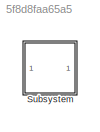
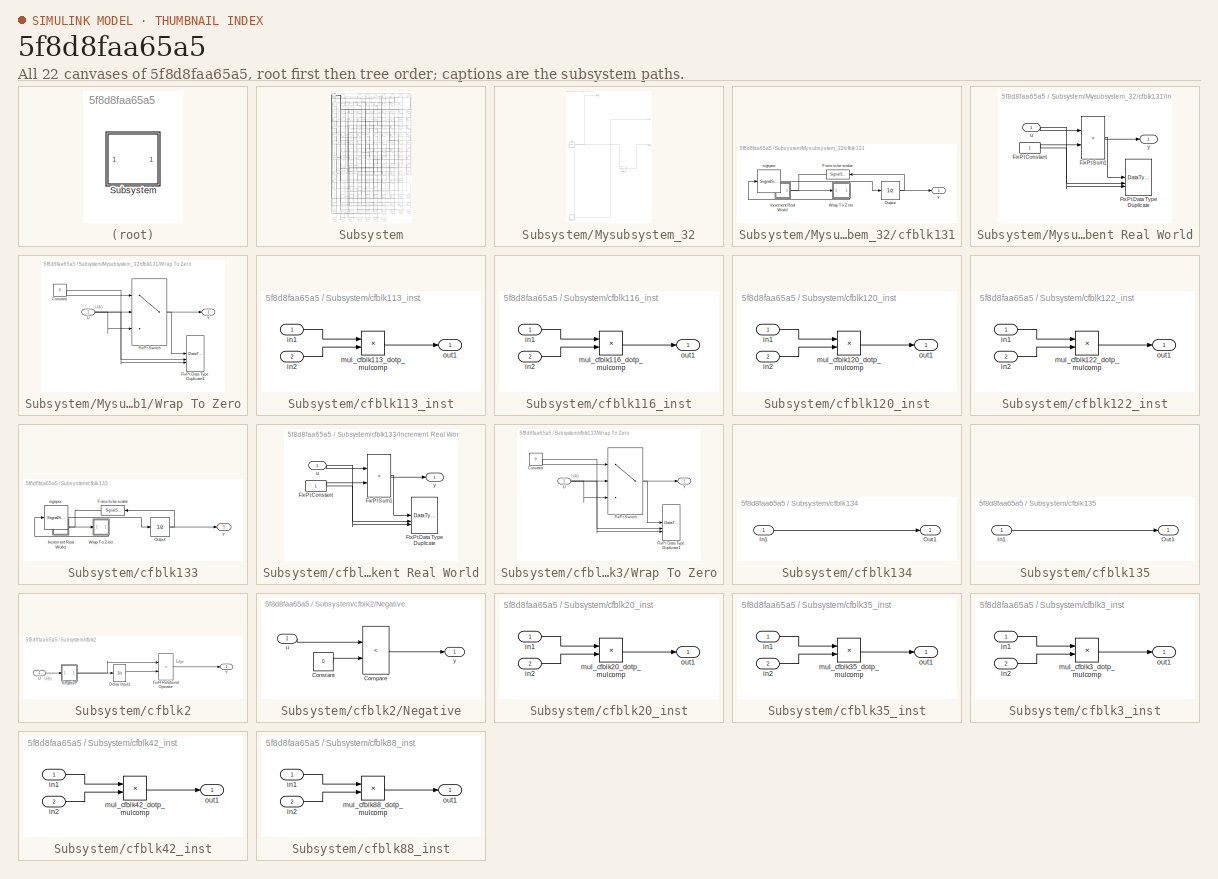
[diagram: thumbnail index - all 22 canvases of the model, root first then tree order]
MODEL slx_5f8d8faa65a5
KIND model
CONFIG AbsTol = auto
CONFIG EnableMultiTasking = off
CONFIG FixedStep = auto
CONFIG MaxStep = auto
CONFIG MinStep = auto
CONFIG RelTol = 1e-3
CONFIG SampleTimeConstraint = Unconstrained
CONFIG SolverName = VariableStepAuto
CONFIG StartTime = 0.0
CONFIG StopTime = 10.0
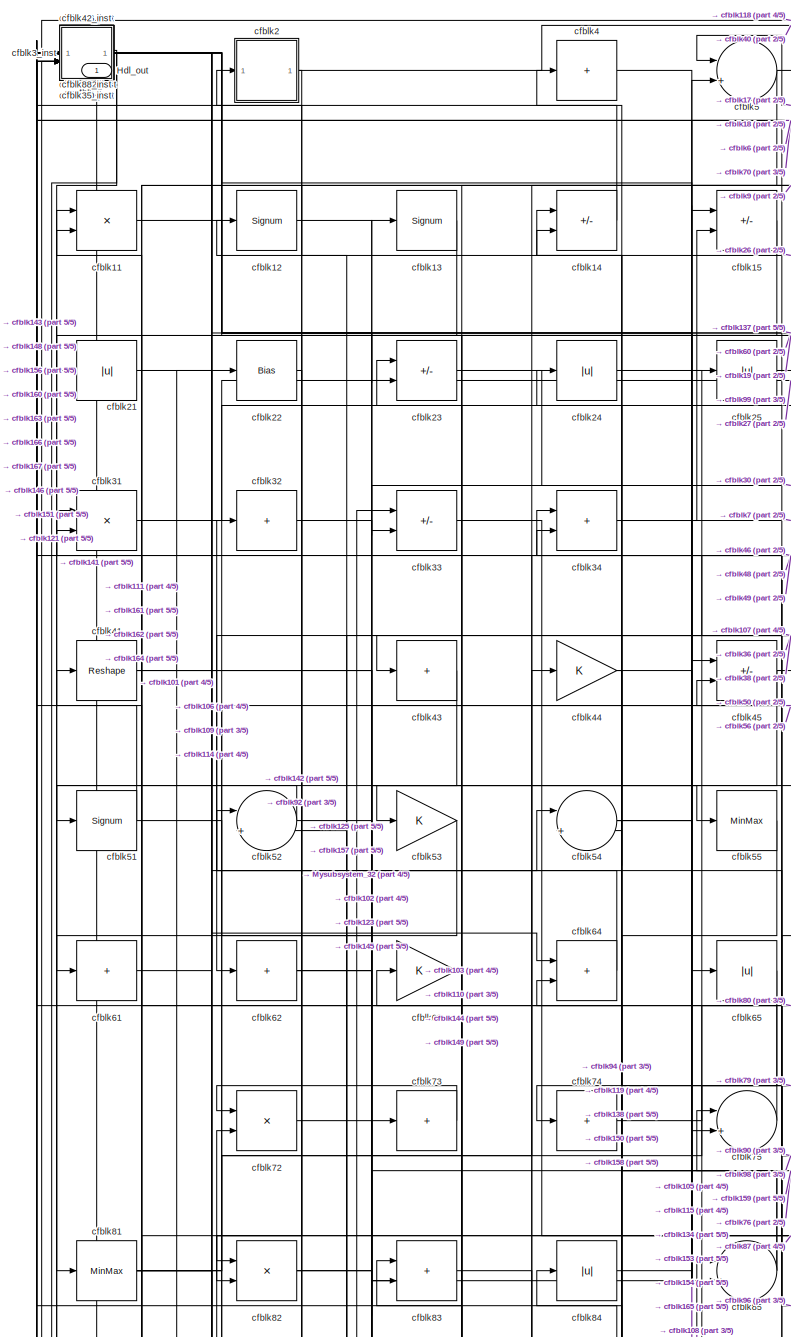
[diagram: Subsystem - part 1/5, top left region]
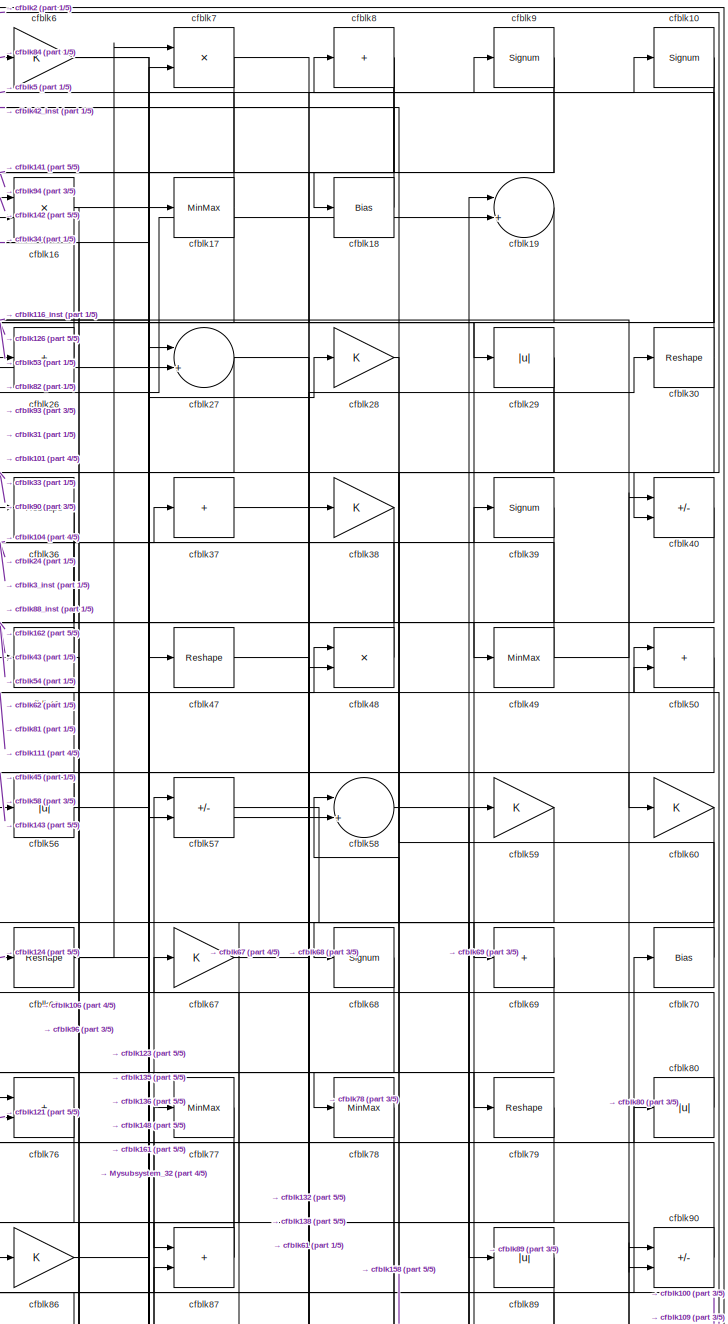
[diagram: Subsystem - part 2/5, top right region]
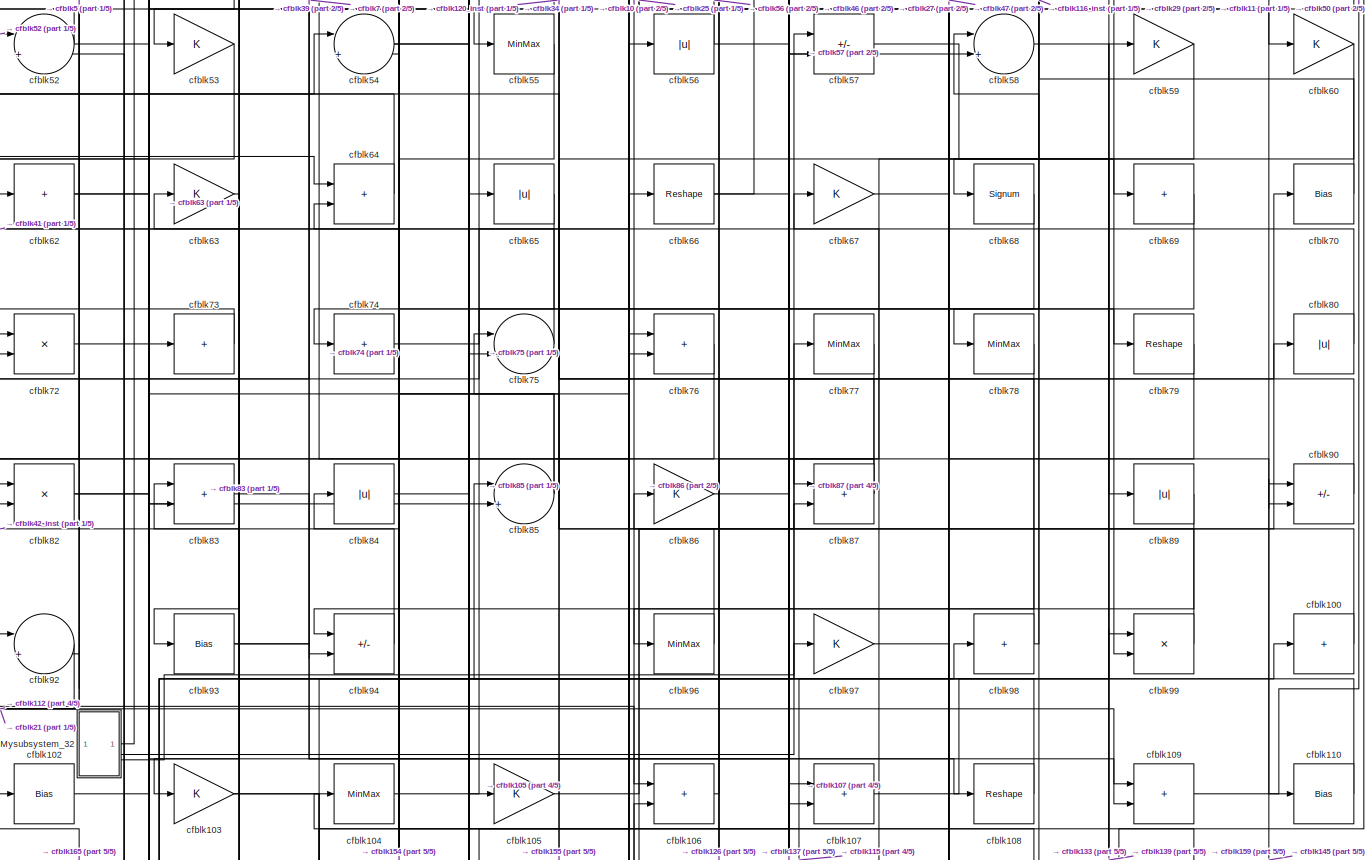
[diagram: Subsystem - part 3/5, full width, middle band]
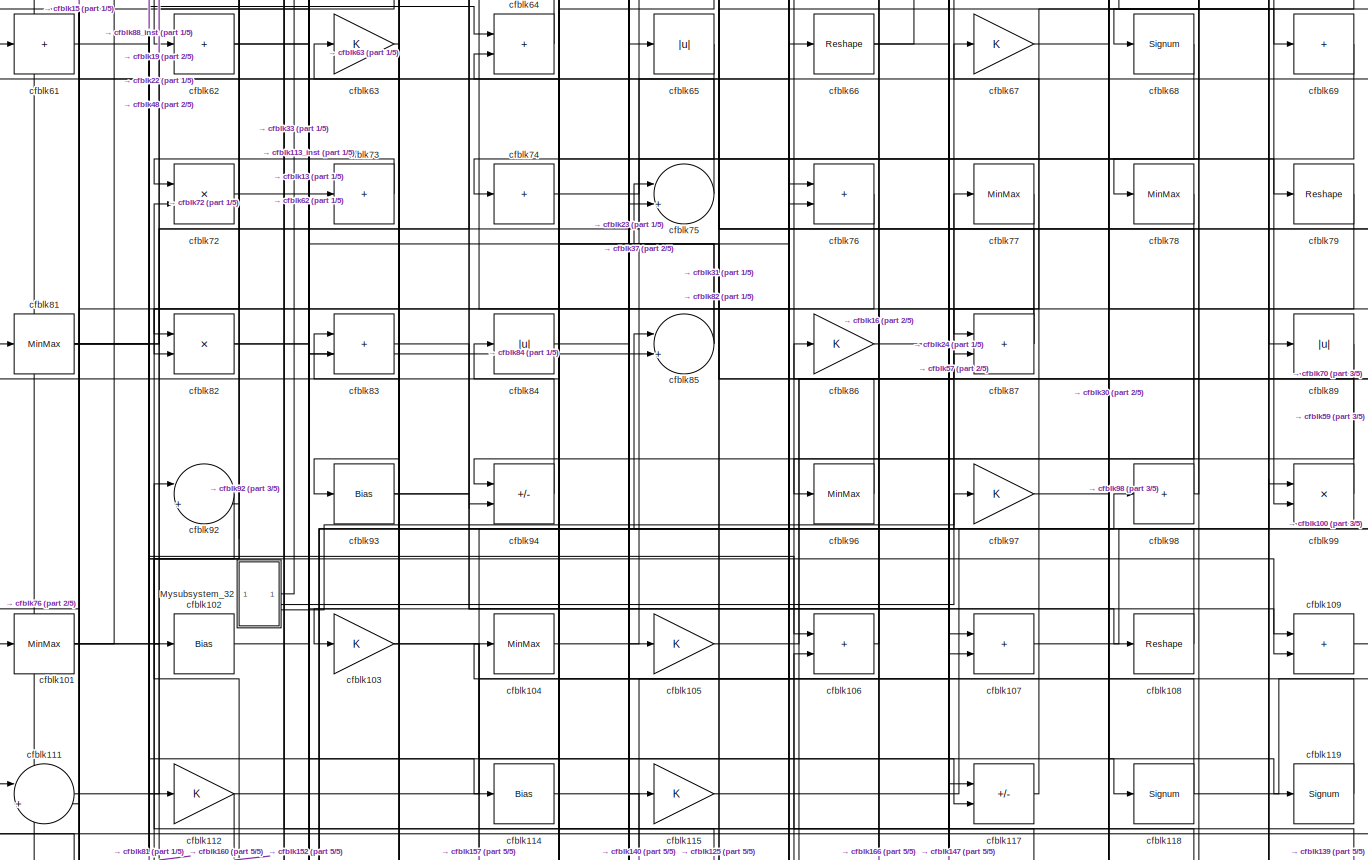
[diagram: Subsystem - part 4/5, full width, middle band]
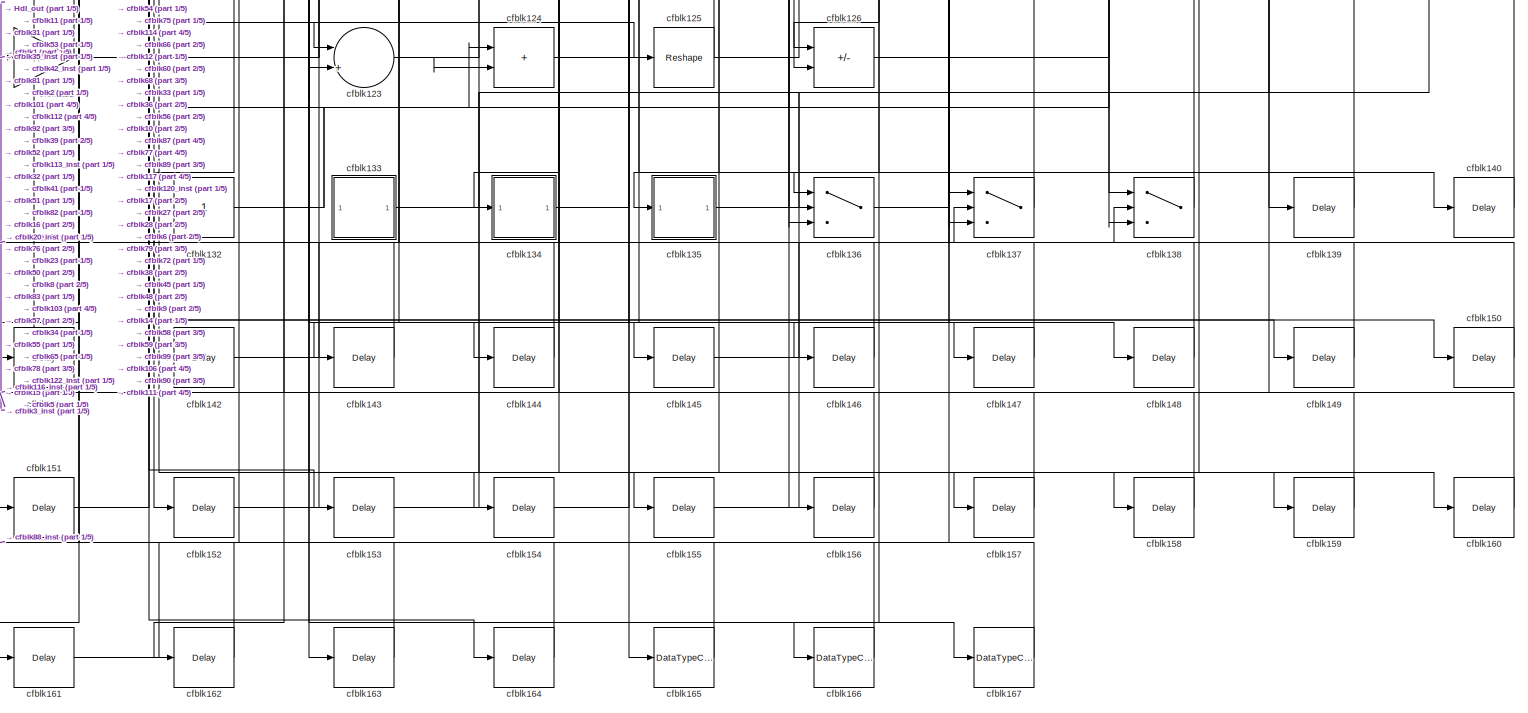
[diagram: Subsystem - part 5/5, full width, bottom band]
BLOCK [SubSystem] Subsystem
BLOCK [Outport] Subsystem/Hdl_out
  OutDataTypeStr = uint8
  SampleTime = 1
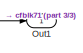
[diagram: Subsystem/Mysubsystem_32 - part 1/3, top center region]
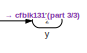
[diagram: Subsystem/Mysubsystem_32 - part 2/3, top right region]
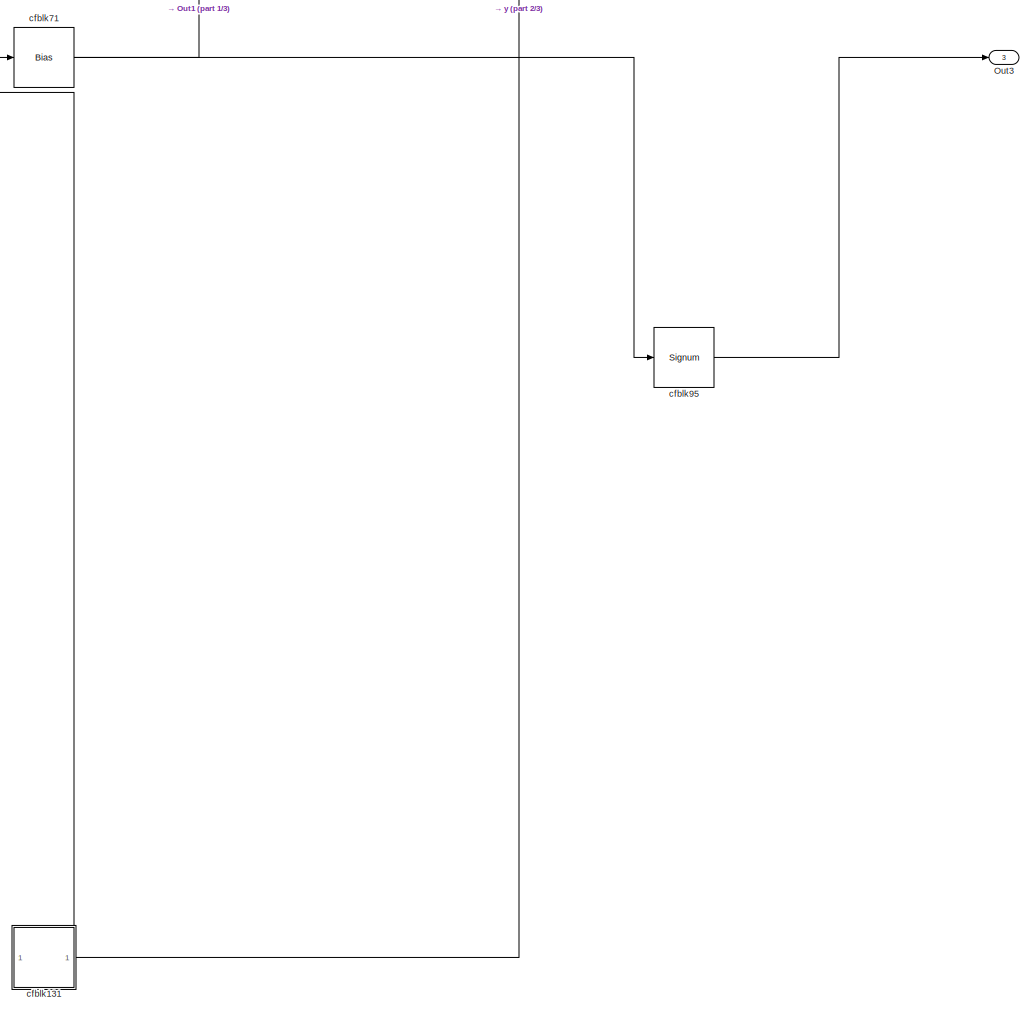
[diagram: Subsystem/Mysubsystem_32 - part 3/3, full width, bottom band]
BLOCK [SubSystem] Subsystem/Mysubsystem_32
BLOCK [Outport] Subsystem/Mysubsystem_32/Out1
  SampleTime = 1
BLOCK [Outport] Subsystem/Mysubsystem_32/Out3
  Port = 3
  SampleTime = 1
BLOCK [SubSystem] Subsystem/Mysubsystem_32/cfblk131
BLOCK [SignalSpecification] Subsystem/Mysubsystem_32/cfblk131/Force to be scalar
  Dimensions = 1
  DisableCoverage = on
BLOCK [SubSystem] Subsystem/Mysubsystem_32/cfblk131/Increment Real World
BLOCK [Constant] Subsystem/Mysubsystem_32/cfblk131/Increment Real World/FixPt Constant
  DisableCoverage = on
  OutDataTypeStr = Inherit: Inherit via back propagation
  SampleTime = -1
BLOCK [DataTypeDuplicate] Subsystem/Mysubsystem_32/cfblk131/Increment Real World/FixPt Data Type Duplicate
  DisableCoverage = on
  NumInputPorts = 3
BLOCK [Sum] Subsystem/Mysubsystem_32/cfblk131/Increment Real World/FixPt Sum1
  IconShape = rectangular
  InputSameDT = on
  LockScale = on
  OutDataTypeStr = Inherit: Inherit via back propagation
BLOCK [Inport] Subsystem/Mysubsystem_32/cfblk131/Increment Real World/u
  OutDataTypeStr = uint8
  SampleTime = 1
BLOCK [Outport] Subsystem/Mysubsystem_32/cfblk131/Increment Real World/y
  SampleTime = 1
BLOCK [UnitDelay] Subsystem/Mysubsystem_32/cfblk131/Output
  HasFrameUpgradeWarning = on
  InitialCondition = 0.0
  SampleTime = tsamp
BLOCK [SubSystem] Subsystem/Mysubsystem_32/cfblk131/Wrap To Zero
BLOCK [Constant] Subsystem/Mysubsystem_32/cfblk131/Wrap To Zero/Constant
  DisableCoverage = on
  OutDataTypeStr = Inherit: Inherit via back propagation
  SampleTime = -1
  Value = 0
BLOCK [DataTypeDuplicate] Subsystem/Mysubsystem_32/cfblk131/Wrap To Zero/FixPt Data Type Duplicate1
  DisableCoverage = on
  NumInputPorts = 3
BLOCK [Switch] Subsystem/Mysubsystem_32/cfblk131/Wrap To Zero/FixPt Switch
  Criteria = u2 > Threshold
  InputSameDT = off
  OutDataTypeStr = Inherit: Inherit via back propagation
  SaturateOnIntegerOverflow = off
  Threshold = Threshold
  ZeroCross = off
BLOCK [Inport] Subsystem/Mysubsystem_32/cfblk131/Wrap To Zero/U
  OutDataTypeStr = uint8
  SampleTime = 1
BLOCK [Outport] Subsystem/Mysubsystem_32/cfblk131/Wrap To Zero/Y
  SampleTime = 1
BLOCK [SignalSpecification] Subsystem/Mysubsystem_32/cfblk131/sigspec
  Dimensions = 1
  OutDataTypeStr = uint8
BLOCK [Outport] Subsystem/Mysubsystem_32/cfblk131/y
  SampleTime = 1
BLOCK [Bias] Subsystem/Mysubsystem_32/cfblk71
  Bias = 0.0
  SaturateOnIntegerOverflow = off
BLOCK [Signum] Subsystem/Mysubsystem_32/cfblk95
BLOCK [Outport] Subsystem/Mysubsystem_32/y
  Port = 2
  SampleTime = 1
BLOCK [Constant] Subsystem/cfblk1
  OutDataTypeStr = uint8
  SampleTime = 1
  Value = 0
BLOCK [Signum] Subsystem/cfblk10
BLOCK [Sum] Subsystem/cfblk100
  IconShape = rectangular
  Inputs = +
  OutDataTypeStr = uint8
BLOCK [MinMax] Subsystem/cfblk101
  OutDataTypeStr = uint8
BLOCK [Bias] Subsystem/cfblk102
  Bias = 0.0
  SaturateOnIntegerOverflow = off
BLOCK [Gain] Subsystem/cfblk103
  OutDataTypeStr = uint8
BLOCK [MinMax] Subsystem/cfblk104
  OutDataTypeStr = uint8
BLOCK [Gain] Subsystem/cfblk105
  OutDataTypeStr = uint8
BLOCK [Sum] Subsystem/cfblk106
  IconShape = rectangular
  OutDataTypeStr = uint8
BLOCK [Sum] Subsystem/cfblk107
  IconShape = rectangular
  OutDataTypeStr = uint8
BLOCK [Reshape] Subsystem/cfblk108
BLOCK [Sum] Subsystem/cfblk109
  IconShape = rectangular
  OutDataTypeStr = uint8
BLOCK [Product] Subsystem/cfblk11
  Inputs = */
  OutDataTypeStr = uint8
  RndMeth = Zero
  SaturateOnIntegerOverflow = on
BLOCK [Bias] Subsystem/cfblk110
  Bias = 0.0
  SaturateOnIntegerOverflow = off
BLOCK [Sum] Subsystem/cfblk111
  Inputs = |++
  OutDataTypeStr = uint8
BLOCK [Gain] Subsystem/cfblk112
  OutDataTypeStr = uint8
BLOCK [SubSystem] Subsystem/cfblk113_inst
BLOCK [Inport] Subsystem/cfblk113_inst/in1
  OutDataTypeStr = uint8
  SampleTime = 1
BLOCK [Inport] Subsystem/cfblk113_inst/in2
  OutDataTypeStr = uint8
  Port = 2
  SampleTime = 1
BLOCK [Product] Subsystem/cfblk113_inst/mul_cfblk113_dotp_mulcomp
  Inputs = **
  OutDataTypeStr = uint8
  SampleTime = 1
BLOCK [Outport] Subsystem/cfblk113_inst/out1
  OutDataTypeStr = uint8
  SampleTime = 1
BLOCK [Bias] Subsystem/cfblk114
  Bias = 0.0
  SaturateOnIntegerOverflow = off
BLOCK [Gain] Subsystem/cfblk115
  OutDataTypeStr = uint8
BLOCK [SubSystem] Subsystem/cfblk116_inst
BLOCK [Inport] Subsystem/cfblk116_inst/in1
  OutDataTypeStr = uint8
  SampleTime = 1
BLOCK [Inport] Subsystem/cfblk116_inst/in2
  OutDataTypeStr = uint8
  Port = 2
  SampleTime = 1
BLOCK [Product] Subsystem/cfblk116_inst/mul_cfblk116_dotp_mulcomp
  Inputs = **
  OutDataTypeStr = uint8
  SampleTime = 1
BLOCK [Outport] Subsystem/cfblk116_inst/out1
  OutDataTypeStr = uint8
  SampleTime = 1
BLOCK [Sum] Subsystem/cfblk117
  IconShape = rectangular
  Inputs = +-
  OutDataTypeStr = uint8
BLOCK [Signum] Subsystem/cfblk118
BLOCK [Signum] Subsystem/cfblk119
BLOCK [Signum] Subsystem/cfblk12
BLOCK [SubSystem] Subsystem/cfblk120_inst
BLOCK [Inport] Subsystem/cfblk120_inst/in1
  OutDataTypeStr = uint8
  SampleTime = 1
BLOCK [Inport] Subsystem/cfblk120_inst/in2
  OutDataTypeStr = uint8
  Port = 2
  SampleTime = 1
BLOCK [Product] Subsystem/cfblk120_inst/mul_cfblk120_dotp_mulcomp
  Inputs = **
  OutDataTypeStr = uint8
  SampleTime = 1
BLOCK [Outport] Subsystem/cfblk120_inst/out1
  OutDataTypeStr = uint8
  SampleTime = 1
BLOCK [Gain] Subsystem/cfblk121
  OutDataTypeStr = uint8
BLOCK [SubSystem] Subsystem/cfblk122_inst
BLOCK [Inport] Subsystem/cfblk122_inst/in1
  OutDataTypeStr = uint8
  SampleTime = 1
BLOCK [Inport] Subsystem/cfblk122_inst/in2
  OutDataTypeStr = uint8
  Port = 2
  SampleTime = 1
BLOCK [Product] Subsystem/cfblk122_inst/mul_cfblk122_dotp_mulcomp
  Inputs = **
  OutDataTypeStr = uint8
  SampleTime = 1
BLOCK [Outport] Subsystem/cfblk122_inst/out1
  OutDataTypeStr = uint8
  SampleTime = 1
BLOCK [Sum] Subsystem/cfblk123
  Inputs = |++
  OutDataTypeStr = uint8
BLOCK [Sum] Subsystem/cfblk124
  IconShape = rectangular
  OutDataTypeStr = uint8
BLOCK [Reshape] Subsystem/cfblk125
BLOCK [Sum] Subsystem/cfblk126
  IconShape = rectangular
  Inputs = +-
  OutDataTypeStr = uint8
BLOCK [Signum] Subsystem/cfblk13
BLOCK [Constant] Subsystem/cfblk132
  OutDataTypeStr = uint8
  SampleTime = -1
BLOCK [SubSystem] Subsystem/cfblk133
BLOCK [SignalSpecification] Subsystem/cfblk133/Force to be scalar
  Dimensions = 1
  DisableCoverage = on
BLOCK [SubSystem] Subsystem/cfblk133/Increment Real World
BLOCK [Constant] Subsystem/cfblk133/Increment Real World/FixPt Constant
  DisableCoverage = on
  OutDataTypeStr = Inherit: Inherit via back propagation
  SampleTime = -1
BLOCK [DataTypeDuplicate] Subsystem/cfblk133/Increment Real World/FixPt Data Type Duplicate
  DisableCoverage = on
  NumInputPorts = 3
BLOCK [Sum] Subsystem/cfblk133/Increment Real World/FixPt Sum1
  IconShape = rectangular
  InputSameDT = on
  LockScale = on
  OutDataTypeStr = Inherit: Inherit via back propagation
BLOCK [Inport] Subsystem/cfblk133/Increment Real World/u
  OutDataTypeStr = uint16
  SampleTime = 1
BLOCK [Outport] Subsystem/cfblk133/Increment Real World/y
  SampleTime = 1
BLOCK [UnitDelay] Subsystem/cfblk133/Output
  HasFrameUpgradeWarning = on
  InitialCondition = 0.0
  SampleTime = tsamp
BLOCK [SubSystem] Subsystem/cfblk133/Wrap To Zero
BLOCK [Constant] Subsystem/cfblk133/Wrap To Zero/Constant
  DisableCoverage = on
  OutDataTypeStr = Inherit: Inherit via back propagation
  SampleTime = -1
  Value = 0
BLOCK [DataTypeDuplicate] Subsystem/cfblk133/Wrap To Zero/FixPt Data Type Duplicate1
  DisableCoverage = on
  NumInputPorts = 3
BLOCK [Switch] Subsystem/cfblk133/Wrap To Zero/FixPt Switch
  Criteria = u2 > Threshold
  InputSameDT = off
  OutDataTypeStr = Inherit: Inherit via back propagation
  SaturateOnIntegerOverflow = off
  Threshold = Threshold
  ZeroCross = off
BLOCK [Inport] Subsystem/cfblk133/Wrap To Zero/U
  OutDataTypeStr = uint16
  SampleTime = 1
BLOCK [Outport] Subsystem/cfblk133/Wrap To Zero/Y
  SampleTime = 1
BLOCK [SignalSpecification] Subsystem/cfblk133/sigspec
  Dimensions = 1
  OutDataTypeStr = uint16
BLOCK [Outport] Subsystem/cfblk133/y
  SampleTime = 1
BLOCK [SubSystem] Subsystem/cfblk134
BLOCK [Inport] Subsystem/cfblk134/In1
  OutDataTypeStr = uint8
  PortDimensions = 1
  SampleTime = 1
BLOCK [Outport] Subsystem/cfblk134/Out1
  SampleTime = 1
BLOCK [SubSystem] Subsystem/cfblk135
BLOCK [Inport] Subsystem/cfblk135/In1
  OutDataTypeStr = uint8
  PortDimensions = 1
  SampleTime = 1
BLOCK [Outport] Subsystem/cfblk135/Out1
  SampleTime = 1
BLOCK [Switch] Subsystem/cfblk136
  InputSameDT = off
  OutDataTypeStr = uint8
  SaturateOnIntegerOverflow = off
BLOCK [Switch] Subsystem/cfblk137
  InputSameDT = off
  OutDataTypeStr = uint8
  SaturateOnIntegerOverflow = off
BLOCK [Switch] Subsystem/cfblk138
  InputSameDT = off
  OutDataTypeStr = uint8
  SaturateOnIntegerOverflow = off
BLOCK [Delay] Subsystem/cfblk139
  InputPortMap = u0
  SampleTime = 1
BLOCK [Sum] Subsystem/cfblk14
  IconShape = rectangular
  Inputs = +-
  OutDataTypeStr = uint8
BLOCK [Delay] Subsystem/cfblk140
  InputPortMap = u0
  SampleTime = 1
BLOCK [Delay] Subsystem/cfblk141
  InputPortMap = u0
  SampleTime = 1
BLOCK [Delay] Subsystem/cfblk142
  InputPortMap = u0
  SampleTime = 1
BLOCK [Delay] Subsystem/cfblk143
  InputPortMap = u0
  SampleTime = 1
BLOCK [Delay] Subsystem/cfblk144
  InputPortMap = u0
  SampleTime = 1
BLOCK [Delay] Subsystem/cfblk145
  InputPortMap = u0
  SampleTime = 1
BLOCK [Delay] Subsystem/cfblk146
  InputPortMap = u0
  SampleTime = 1
BLOCK [Delay] Subsystem/cfblk147
  InputPortMap = u0
  SampleTime = 1
BLOCK [Delay] Subsystem/cfblk148
  InputPortMap = u0
  SampleTime = 1
BLOCK [Delay] Subsystem/cfblk149
  InputPortMap = u0
  SampleTime = 1
BLOCK [Sum] Subsystem/cfblk15
  IconShape = rectangular
  Inputs = +-
  OutDataTypeStr = uint8
BLOCK [Delay] Subsystem/cfblk150
  InputPortMap = u0
  SampleTime = 1
BLOCK [Delay] Subsystem/cfblk151
  InputPortMap = u0
  SampleTime = 1
BLOCK [Delay] Subsystem/cfblk152
  InputPortMap = u0
  SampleTime = 1
BLOCK [Delay] Subsystem/cfblk153
  InputPortMap = u0
  SampleTime = 1
BLOCK [Delay] Subsystem/cfblk154
  InputPortMap = u0
  SampleTime = 1
BLOCK [Delay] Subsystem/cfblk155
  InputPortMap = u0
  SampleTime = 1
BLOCK [Delay] Subsystem/cfblk156
  InputPortMap = u0
  SampleTime = 1
BLOCK [Delay] Subsystem/cfblk157
  InputPortMap = u0
  SampleTime = 1
BLOCK [Delay] Subsystem/cfblk158
  InputPortMap = u0
  SampleTime = 1
BLOCK [Delay] Subsystem/cfblk159
  InputPortMap = u0
  SampleTime = 1
BLOCK [Product] Subsystem/cfblk16
  Inputs = */
  OutDataTypeStr = uint8
  RndMeth = Zero
  SaturateOnIntegerOverflow = on
BLOCK [Delay] Subsystem/cfblk160
  InputPortMap = u0
  SampleTime = 1
BLOCK [Delay] Subsystem/cfblk161
  InputPortMap = u0
  SampleTime = 1
BLOCK [Delay] Subsystem/cfblk162
  InputPortMap = u0
  SampleTime = 1
BLOCK [Delay] Subsystem/cfblk163
  InputPortMap = u0
  SampleTime = 1
BLOCK [Delay] Subsystem/cfblk164
  InputPortMap = u0
  SampleTime = 1
BLOCK [DataTypeConversion] Subsystem/cfblk165
  OutDataTypeStr = uint8
  RndMeth = Floor
  SaturateOnIntegerOverflow = off
BLOCK [DataTypeConversion] Subsystem/cfblk166
  OutDataTypeStr = uint8
  RndMeth = Floor
  SaturateOnIntegerOverflow = off
BLOCK [DataTypeConversion] Subsystem/cfblk167
  OutDataTypeStr = uint8
  RndMeth = Floor
  SaturateOnIntegerOverflow = off
BLOCK [MinMax] Subsystem/cfblk17
  OutDataTypeStr = uint8
BLOCK [Bias] Subsystem/cfblk18
  Bias = 0.0
  SaturateOnIntegerOverflow = off
BLOCK [Sum] Subsystem/cfblk19
  Inputs = |++
  OutDataTypeStr = uint8
BLOCK [SubSystem] Subsystem/cfblk2
BLOCK [UnitDelay] Subsystem/cfblk2/Delay Input1
  Description = Store in Global RAM
  DisableCoverage = on
  HasFrameUpgradeWarning = on
  InitialCondition = vinit
  SampleTime = -1
BLOCK [RelationalOperator] Subsystem/cfblk2/FixPt Relational Operator
  InputSameDT = off
  Operator = >
  OutDataTypeStr = fixdt(0, 8)
  ZeroCross = off
BLOCK [SubSystem] Subsystem/cfblk2/Negative
BLOCK [RelationalOperator] Subsystem/cfblk2/Negative/Compare
  Operator = <
  OutDataTypeStr = boolean
  ZeroCross = off
BLOCK [Constant] Subsystem/cfblk2/Negative/Constant
  DisableCoverage = on
  OutDataTypeStr = Inherit: Inherit via back propagation
  PreserveConstantTs = on
  SampleTime = -1
  Value = 0
BLOCK [Inport] Subsystem/cfblk2/Negative/u
  OutDataTypeStr = uint8
  SampleTime = 1
BLOCK [Outport] Subsystem/cfblk2/Negative/y
  SampleTime = 1
BLOCK [Inport] Subsystem/cfblk2/U
  OutDataTypeStr = uint8
  SampleTime = 1
BLOCK [Outport] Subsystem/cfblk2/Y
  SampleTime = 1
BLOCK [SubSystem] Subsystem/cfblk20_inst
BLOCK [Inport] Subsystem/cfblk20_inst/in1
  OutDataTypeStr = uint8
  SampleTime = 1
BLOCK [Inport] Subsystem/cfblk20_inst/in2
  OutDataTypeStr = uint8
  Port = 2
  SampleTime = 1
BLOCK [Product] Subsystem/cfblk20_inst/mul_cfblk20_dotp_mulcomp
  Inputs = **
  OutDataTypeStr = uint8
  SampleTime = 1
BLOCK [Outport] Subsystem/cfblk20_inst/out1
  OutDataTypeStr = uint8
  SampleTime = 1
BLOCK [Abs] Subsystem/cfblk21
  OutDataTypeStr = uint8
  SaturateOnIntegerOverflow = off
BLOCK [Bias] Subsystem/cfblk22
  Bias = 0.0
  SaturateOnIntegerOverflow = off
BLOCK [Sum] Subsystem/cfblk23
  IconShape = rectangular
  Inputs = +-
  OutDataTypeStr = uint8
BLOCK [Abs] Subsystem/cfblk24
  OutDataTypeStr = uint8
  SaturateOnIntegerOverflow = off
BLOCK [Abs] Subsystem/cfblk25
  OutDataTypeStr = uint8
  SaturateOnIntegerOverflow = off
BLOCK [Sum] Subsystem/cfblk26
  IconShape = rectangular
  Inputs = +
  OutDataTypeStr = uint8
BLOCK [Sum] Subsystem/cfblk27
  Inputs = |++
  OutDataTypeStr = uint8
BLOCK [Gain] Subsystem/cfblk28
  OutDataTypeStr = uint8
BLOCK [Abs] Subsystem/cfblk29
  OutDataTypeStr = uint8
  SaturateOnIntegerOverflow = off
BLOCK [Reshape] Subsystem/cfblk30
BLOCK [Product] Subsystem/cfblk31
  Inputs = */
  OutDataTypeStr = uint8
  RndMeth = Zero
  SaturateOnIntegerOverflow = on
BLOCK [Sum] Subsystem/cfblk32
  IconShape = rectangular
  Inputs = +
  OutDataTypeStr = uint8
BLOCK [Sum] Subsystem/cfblk33
  IconShape = rectangular
  Inputs = +-
  OutDataTypeStr = uint8
BLOCK [Sum] Subsystem/cfblk34
  IconShape = rectangular
  OutDataTypeStr = uint8
BLOCK [SubSystem] Subsystem/cfblk35_inst
BLOCK [Inport] Subsystem/cfblk35_inst/in1
  OutDataTypeStr = uint8
  SampleTime = 1
BLOCK [Inport] Subsystem/cfblk35_inst/in2
  OutDataTypeStr = uint8
  Port = 2
  SampleTime = 1
BLOCK [Product] Subsystem/cfblk35_inst/mul_cfblk35_dotp_mulcomp
  Inputs = **
  OutDataTypeStr = uint8
  SampleTime = 1
BLOCK [Outport] Subsystem/cfblk35_inst/out1
  OutDataTypeStr = uint8
  SampleTime = 1
BLOCK [Reshape] Subsystem/cfblk36
BLOCK [Sum] Subsystem/cfblk37
  IconShape = rectangular
  Inputs = +
  OutDataTypeStr = uint8
BLOCK [Gain] Subsystem/cfblk38
  OutDataTypeStr = uint8
BLOCK [Signum] Subsystem/cfblk39
BLOCK [SubSystem] Subsystem/cfblk3_inst
BLOCK [Inport] Subsystem/cfblk3_inst/in1
  OutDataTypeStr = uint8
  SampleTime = 1
BLOCK [Inport] Subsystem/cfblk3_inst/in2
  OutDataTypeStr = uint8
  Port = 2
  SampleTime = 1
BLOCK [Product] Subsystem/cfblk3_inst/mul_cfblk3_dotp_mulcomp
  Inputs = **
  OutDataTypeStr = uint8
  SampleTime = 1
BLOCK [Outport] Subsystem/cfblk3_inst/out1
  OutDataTypeStr = uint8
  SampleTime = 1
BLOCK [Sum] Subsystem/cfblk4
  IconShape = rectangular
  Inputs = +
  OutDataTypeStr = uint8
BLOCK [Sum] Subsystem/cfblk40
  IconShape = rectangular
  Inputs = +-
  OutDataTypeStr = uint8
BLOCK [Reshape] Subsystem/cfblk41
BLOCK [SubSystem] Subsystem/cfblk42_inst
BLOCK [Inport] Subsystem/cfblk42_inst/in1
  OutDataTypeStr = uint8
  SampleTime = 1
BLOCK [Inport] Subsystem/cfblk42_inst/in2
  OutDataTypeStr = uint8
  Port = 2
  SampleTime = 1
BLOCK [Product] Subsystem/cfblk42_inst/mul_cfblk42_dotp_mulcomp
  Inputs = **
  OutDataTypeStr = uint8
  SampleTime = 1
BLOCK [Outport] Subsystem/cfblk42_inst/out1
  OutDataTypeStr = uint8
  SampleTime = 1
BLOCK [Sum] Subsystem/cfblk43
  IconShape = rectangular
  Inputs = +
  OutDataTypeStr = uint8
BLOCK [Gain] Subsystem/cfblk44
  OutDataTypeStr = uint8
BLOCK [Sum] Subsystem/cfblk45
  IconShape = rectangular
  Inputs = +-
  OutDataTypeStr = uint8
BLOCK [Sum] Subsystem/cfblk46
  IconShape = rectangular
  Inputs = +
  OutDataTypeStr = uint8
BLOCK [Reshape] Subsystem/cfblk47
BLOCK [Product] Subsystem/cfblk48
  Inputs = */
  OutDataTypeStr = uint8
  RndMeth = Zero
  SaturateOnIntegerOverflow = on
BLOCK [MinMax] Subsystem/cfblk49
  OutDataTypeStr = uint8
BLOCK [Sum] Subsystem/cfblk5
  Inputs = |++
  OutDataTypeStr = uint8
BLOCK [Sum] Subsystem/cfblk50
  IconShape = rectangular
  OutDataTypeStr = uint8
BLOCK [Signum] Subsystem/cfblk51
BLOCK [Sum] Subsystem/cfblk52
  Inputs = |++
  OutDataTypeStr = uint8
BLOCK [Gain] Subsystem/cfblk53
  OutDataTypeStr = uint8
BLOCK [Sum] Subsystem/cfblk54
  Inputs = |++
  OutDataTypeStr = uint8
BLOCK [MinMax] Subsystem/cfblk55
  OutDataTypeStr = uint8
BLOCK [Abs] Subsystem/cfblk56
  OutDataTypeStr = uint8
  SaturateOnIntegerOverflow = off
BLOCK [Sum] Subsystem/cfblk57
  IconShape = rectangular
  Inputs = +-
  OutDataTypeStr = uint8
BLOCK [Sum] Subsystem/cfblk58
  Inputs = |++
  OutDataTypeStr = uint8
BLOCK [Gain] Subsystem/cfblk59
  OutDataTypeStr = uint8
BLOCK [Gain] Subsystem/cfblk6
  OutDataTypeStr = uint8
BLOCK [Gain] Subsystem/cfblk60
  OutDataTypeStr = uint8
BLOCK [Sum] Subsystem/cfblk61
  IconShape = rectangular
  Inputs = +
  OutDataTypeStr = uint8
BLOCK [Sum] Subsystem/cfblk62
  IconShape = rectangular
  Inputs = +
  OutDataTypeStr = uint8
BLOCK [Gain] Subsystem/cfblk63
  OutDataTypeStr = uint8
BLOCK [Sum] Subsystem/cfblk64
  IconShape = rectangular
  OutDataTypeStr = uint8
BLOCK [Abs] Subsystem/cfblk65
  OutDataTypeStr = uint8
  SaturateOnIntegerOverflow = off
BLOCK [Reshape] Subsystem/cfblk66
BLOCK [Gain] Subsystem/cfblk67
  OutDataTypeStr = uint8
BLOCK [Signum] Subsystem/cfblk68
BLOCK [Sum] Subsystem/cfblk69
  IconShape = rectangular
  Inputs = +
  OutDataTypeStr = uint8
BLOCK [Product] Subsystem/cfblk7
  Inputs = */
  OutDataTypeStr = uint8
  RndMeth = Zero
  SaturateOnIntegerOverflow = on
BLOCK [Bias] Subsystem/cfblk70
  Bias = 0.0
  SaturateOnIntegerOverflow = off
BLOCK [Product] Subsystem/cfblk72
  Inputs = */
  OutDataTypeStr = uint8
  RndMeth = Zero
  SaturateOnIntegerOverflow = on
BLOCK [Sum] Subsystem/cfblk73
  IconShape = rectangular
  Inputs = +
  OutDataTypeStr = uint8
BLOCK [Sum] Subsystem/cfblk74
  IconShape = rectangular
  Inputs = +
  OutDataTypeStr = uint8
BLOCK [Sum] Subsystem/cfblk75
  Inputs = |++
  OutDataTypeStr = uint8
BLOCK [Sum] Subsystem/cfblk76
  IconShape = rectangular
  OutDataTypeStr = uint8
BLOCK [MinMax] Subsystem/cfblk77
  OutDataTypeStr = uint8
BLOCK [MinMax] Subsystem/cfblk78
  OutDataTypeStr = uint8
BLOCK [Reshape] Subsystem/cfblk79
BLOCK [Sum] Subsystem/cfblk8
  IconShape = rectangular
  Inputs = +
  OutDataTypeStr = uint8
BLOCK [Abs] Subsystem/cfblk80
  OutDataTypeStr = uint8
  SaturateOnIntegerOverflow = off
BLOCK [MinMax] Subsystem/cfblk81
  OutDataTypeStr = uint8
BLOCK [Product] Subsystem/cfblk82
  Inputs = */
  OutDataTypeStr = uint8
  RndMeth = Zero
  SaturateOnIntegerOverflow = on
BLOCK [Sum] Subsystem/cfblk83
  IconShape = rectangular
  OutDataTypeStr = uint8
BLOCK [Abs] Subsystem/cfblk84
  OutDataTypeStr = uint8
  SaturateOnIntegerOverflow = off
BLOCK [Sum] Subsystem/cfblk85
  Inputs = |++
  OutDataTypeStr = uint8
BLOCK [Gain] Subsystem/cfblk86
  OutDataTypeStr = uint8
BLOCK [Sum] Subsystem/cfblk87
  IconShape = rectangular
  OutDataTypeStr = uint8
BLOCK [SubSystem] Subsystem/cfblk88_inst
BLOCK [Inport] Subsystem/cfblk88_inst/in1
  OutDataTypeStr = uint8
  SampleTime = 1
BLOCK [Inport] Subsystem/cfblk88_inst/in2
  OutDataTypeStr = uint8
  Port = 2
  SampleTime = 1
BLOCK [Product] Subsystem/cfblk88_inst/mul_cfblk88_dotp_mulcomp
  Inputs = **
  OutDataTypeStr = uint8
  SampleTime = 1
BLOCK [Outport] Subsystem/cfblk88_inst/out1
  OutDataTypeStr = uint8
  SampleTime = 1
BLOCK [Abs] Subsystem/cfblk89
  OutDataTypeStr = uint8
  SaturateOnIntegerOverflow = off
BLOCK [Signum] Subsystem/cfblk9
BLOCK [Sum] Subsystem/cfblk90
  IconShape = rectangular
  Inputs = +-
  OutDataTypeStr = uint8
BLOCK [Sum] Subsystem/cfblk92
  Inputs = |++
  OutDataTypeStr = uint8
BLOCK [Bias] Subsystem/cfblk93
  Bias = 0.0
  SaturateOnIntegerOverflow = off
BLOCK [Sum] Subsystem/cfblk94
  IconShape = rectangular
  Inputs = +-
  OutDataTypeStr = uint8
BLOCK [MinMax] Subsystem/cfblk96
  OutDataTypeStr = uint8
BLOCK [Gain] Subsystem/cfblk97
  OutDataTypeStr = uint8
BLOCK [Sum] Subsystem/cfblk98
  IconShape = rectangular
  Inputs = +
  OutDataTypeStr = uint8
BLOCK [Product] Subsystem/cfblk99
  Inputs = */
  OutDataTypeStr = uint8
  RndMeth = Zero
  SaturateOnIntegerOverflow = on
ANNOTATION Subsystem/Mysubsystem_32/cfblk131/Wrap To Zero: U(k)
ANNOTATION Subsystem/cfblk133/Wrap To Zero: U(k)
ANNOTATION Subsystem/cfblk2: Edge
ANNOTATION Subsystem/cfblk2: U(k)
NET Subsystem/Mysubsystem_32/cfblk131:1 -> Subsystem/Mysubsystem_32/cfblk71:1, Subsystem/Mysubsystem_32/y:1
NET Subsystem/Mysubsystem_32/cfblk71:1 -> Subsystem/Mysubsystem_32/Out1:1, Subsystem/Mysubsystem_32/cfblk95:1
LINE Subsystem/Mysubsystem_32/cfblk95:1 -> Subsystem/Mysubsystem_32/Out3:1
LINE Subsystem/Mysubsystem_32:1 -> Subsystem/cfblk33:1
LINE Subsystem/Mysubsystem_32:2 -> Subsystem/cfblk57:1
LINE Subsystem/Mysubsystem_32:3 -> Subsystem/cfblk77:1
LINE Subsystem/cfblk100:1 -> Subsystem/cfblk86:1
NET Subsystem/cfblk101:1 -> Subsystem/cfblk160:1, Subsystem/cfblk19:2, Subsystem/cfblk22:1
LINE Subsystem/cfblk102:1 -> Subsystem/cfblk13:1
NET Subsystem/cfblk103:1 -> Subsystem/cfblk117:2, Subsystem/cfblk157:1
LINE Subsystem/cfblk104:1 -> Subsystem/cfblk37:1
LINE Subsystem/cfblk105:1 -> Subsystem/cfblk70:1
LINE Subsystem/cfblk106:1 -> Subsystem/cfblk16:2
LINE Subsystem/cfblk107:1 -> Subsystem/cfblk100:1
LINE Subsystem/cfblk108:1 -> Subsystem/cfblk85:1
LINE Subsystem/cfblk109:1 -> Subsystem/cfblk50:1
NET Subsystem/cfblk10:1 -> Subsystem/cfblk126:2, Subsystem/cfblk93:1
LINE Subsystem/cfblk110:1 -> Subsystem/cfblk63:1
LINE Subsystem/cfblk111:1 -> Subsystem/cfblk48:1
NET Subsystem/cfblk112:1 -> Subsystem/cfblk152:1, Subsystem/cfblk97:1
LINE Subsystem/cfblk113_inst/in1:1 -> Subsystem/cfblk113_inst/mul_cfblk113_dotp_mulcomp:1
LINE Subsystem/cfblk113_inst/in2:1 -> Subsystem/cfblk113_inst/mul_cfblk113_dotp_mulcomp:2
LINE Subsystem/cfblk113_inst/mul_cfblk113_dotp_mulcomp:1 -> Subsystem/cfblk113_inst/out1:1
NET Subsystem/cfblk113_inst:1 -> Subsystem/cfblk105:1, Subsystem/cfblk123:2
LINE Subsystem/cfblk114:1 -> Subsystem/cfblk140:1
LINE Subsystem/cfblk115:1 -> Subsystem/cfblk98:1
LINE Subsystem/cfblk116_inst/in1:1 -> Subsystem/cfblk116_inst/mul_cfblk116_dotp_mulcomp:1
LINE Subsystem/cfblk116_inst/in2:1 -> Subsystem/cfblk116_inst/mul_cfblk116_dotp_mulcomp:2
LINE Subsystem/cfblk116_inst/mul_cfblk116_dotp_mulcomp:1 -> Subsystem/cfblk116_inst/out1:1
LINE Subsystem/cfblk116_inst:1 -> Subsystem/cfblk60:1
LINE Subsystem/cfblk117:1 -> Subsystem/cfblk67:1
NET Subsystem/cfblk118:1 -> Subsystem/cfblk104:1, Subsystem/cfblk113_inst:1
LINE Subsystem/cfblk119:1 -> Subsystem/cfblk84:1
LINE Subsystem/cfblk11:1 -> Subsystem/cfblk99:2
LINE Subsystem/cfblk120_inst/in1:1 -> Subsystem/cfblk120_inst/mul_cfblk120_dotp_mulcomp:1
LINE Subsystem/cfblk120_inst/in2:1 -> Subsystem/cfblk120_inst/mul_cfblk120_dotp_mulcomp:2
LINE Subsystem/cfblk120_inst/mul_cfblk120_dotp_mulcomp:1 -> Subsystem/cfblk120_inst/out1:1
LINE Subsystem/cfblk120_inst:1 -> Subsystem/cfblk137:1
NET Subsystem/cfblk121:1 -> Subsystem/cfblk11:1, Subsystem/cfblk19:1, Subsystem/cfblk76:2
LINE Subsystem/cfblk122_inst/in1:1 -> Subsystem/cfblk122_inst/mul_cfblk122_dotp_mulcomp:1
LINE Subsystem/cfblk122_inst/in2:1 -> Subsystem/cfblk122_inst/mul_cfblk122_dotp_mulcomp:2
LINE Subsystem/cfblk122_inst/mul_cfblk122_dotp_mulcomp:1 -> Subsystem/cfblk122_inst/out1:1
LINE Subsystem/cfblk122_inst:1 -> Subsystem/cfblk165:1
NET Subsystem/cfblk123:1 -> Subsystem/cfblk124:2, Subsystem/cfblk57:2
NET Subsystem/cfblk124:1 -> Subsystem/cfblk147:1, Subsystem/cfblk66:1
NET Subsystem/cfblk125:1 -> Subsystem/cfblk12:1, Subsystem/cfblk87:2
LINE Subsystem/cfblk126:1 -> Subsystem/cfblk38:1
LINE Subsystem/cfblk12:1 -> Subsystem/cfblk73:1
NET Subsystem/cfblk132:1 -> Subsystem/cfblk48:2, Subsystem/cfblk56:1
LINE Subsystem/cfblk133:1 -> Subsystem/cfblk59:1
LINE Subsystem/cfblk134/In1:1 -> Subsystem/cfblk134/Out1:1
LINE Subsystem/cfblk134:1 -> Subsystem/cfblk75:2
LINE Subsystem/cfblk135/In1:1 -> Subsystem/cfblk135/Out1:1
LINE Subsystem/cfblk135:1 -> Subsystem/cfblk17:1
LINE Subsystem/cfblk136:1 -> Subsystem/cfblk28:1
LINE Subsystem/cfblk137:1 -> Subsystem/cfblk72:2
LINE Subsystem/cfblk138:1 -> Subsystem/cfblk14:1
LINE Subsystem/cfblk139:1 -> Subsystem/cfblk106:2
LINE Subsystem/cfblk13:1 -> Subsystem/cfblk21:1
LINE Subsystem/cfblk140:1 -> Subsystem/cfblk111:1
LINE Subsystem/cfblk141:1 -> Subsystem/Hdl_out:1
LINE Subsystem/cfblk142:1 -> Subsystem/cfblk16:1
LINE Subsystem/cfblk143:1 -> Subsystem/cfblk20_inst:1
LINE Subsystem/cfblk144:1 -> Subsystem/cfblk83:1
LINE Subsystem/cfblk145:1 -> Subsystem/cfblk90:1
LINE Subsystem/cfblk146:1 -> Subsystem/cfblk120_inst:2
LINE Subsystem/cfblk147:1 -> Subsystem/cfblk117:1
LINE Subsystem/cfblk148:1 -> Subsystem/cfblk113_inst:2
LINE Subsystem/cfblk149:1 -> Subsystem/cfblk23:1
LINE Subsystem/cfblk14:1 -> Subsystem/cfblk35_inst:1
LINE Subsystem/cfblk150:1 -> Subsystem/cfblk14:2
LINE Subsystem/cfblk151:1 -> Subsystem/cfblk124:1
LINE Subsystem/cfblk152:1 -> Subsystem/cfblk138:2
LINE Subsystem/cfblk153:1 -> Subsystem/cfblk5:2
LINE Subsystem/cfblk154:1 -> Subsystem/cfblk15:1
LINE Subsystem/cfblk155:1 -> Subsystem/cfblk137:2
LINE Subsystem/cfblk156:1 -> Subsystem/cfblk116_inst:2
LINE Subsystem/cfblk157:1 -> Subsystem/cfblk52:2
LINE Subsystem/cfblk158:1 -> Subsystem/cfblk34:1
LINE Subsystem/cfblk159:1 -> Subsystem/cfblk99:1
LINE Subsystem/cfblk15:1 -> Subsystem/cfblk111:2
LINE Subsystem/cfblk160:1 -> Subsystem/cfblk3_inst:2
LINE Subsystem/cfblk161:1 -> Subsystem/cfblk27:1
LINE Subsystem/cfblk162:1 -> Subsystem/cfblk31:1
LINE Subsystem/cfblk163:1 -> Subsystem/cfblk88_inst:2
LINE Subsystem/cfblk164:1 -> Subsystem/cfblk11:2
LINE Subsystem/cfblk165:1 -> Subsystem/cfblk92:1
LINE Subsystem/cfblk166:1 -> Subsystem/cfblk122_inst:1
LINE Subsystem/cfblk167:1 -> Subsystem/cfblk122_inst:2
NET Subsystem/cfblk16:1 -> Subsystem/cfblk136:1, Subsystem/cfblk49:1
NET Subsystem/cfblk17:1 -> Subsystem/cfblk5:1, Subsystem/cfblk82:2
LINE Subsystem/cfblk18:1 -> Subsystem/cfblk42_inst:2
LINE Subsystem/cfblk19:1 -> Subsystem/cfblk53:1
LINE Subsystem/cfblk1:1 -> Subsystem/cfblk121:1
LINE Subsystem/cfblk20_inst/in1:1 -> Subsystem/cfblk20_inst/mul_cfblk20_dotp_mulcomp:1
LINE Subsystem/cfblk20_inst/in2:1 -> Subsystem/cfblk20_inst/mul_cfblk20_dotp_mulcomp:2
LINE Subsystem/cfblk20_inst/mul_cfblk20_dotp_mulcomp:1 -> Subsystem/cfblk20_inst/out1:1
LINE Subsystem/cfblk20_inst:1 -> Subsystem/cfblk45:1
LINE Subsystem/cfblk21:1 -> Subsystem/cfblk109:2
LINE Subsystem/cfblk22:1 -> Subsystem/cfblk102:1
LINE Subsystem/cfblk23:1 -> Subsystem/cfblk115:1
LINE Subsystem/cfblk24:1 -> Subsystem/cfblk107:1
LINE Subsystem/cfblk25:1 -> Subsystem/cfblk110:1
LINE Subsystem/cfblk26:1 -> Subsystem/cfblk2:1
NET Subsystem/cfblk27:1 -> Subsystem/cfblk136:3, Subsystem/cfblk90:2
LINE Subsystem/cfblk28:1 -> Subsystem/cfblk158:1
NET Subsystem/cfblk29:1 -> Subsystem/cfblk68:1, Subsystem/cfblk78:1
NET Subsystem/cfblk2:1 -> Subsystem/cfblk142:1, Subsystem/cfblk40:2
NET Subsystem/cfblk30:1 -> Subsystem/cfblk33:2, Subsystem/cfblk8:1
LINE Subsystem/cfblk31:1 -> Subsystem/cfblk27:2
LINE Subsystem/cfblk32:1 -> Subsystem/cfblk167:1
LINE Subsystem/cfblk33:1 -> Subsystem/cfblk156:1
NET Subsystem/cfblk34:1 -> Subsystem/cfblk15:2, Subsystem/cfblk7:2
LINE Subsystem/cfblk35_inst/in1:1 -> Subsystem/cfblk35_inst/mul_cfblk35_dotp_mulcomp:1
LINE Subsystem/cfblk35_inst/in2:1 -> Subsystem/cfblk35_inst/mul_cfblk35_dotp_mulcomp:2
LINE Subsystem/cfblk35_inst/mul_cfblk35_dotp_mulcomp:1 -> Subsystem/cfblk35_inst/out1:1
NET Subsystem/cfblk35_inst:1 -> Subsystem/cfblk153:1, Subsystem/cfblk64:1
NET Subsystem/cfblk36:1 -> Subsystem/cfblk136:2, Subsystem/cfblk43:1
LINE Subsystem/cfblk37:1 -> Subsystem/cfblk10:1
LINE Subsystem/cfblk38:1 -> Subsystem/cfblk54:2
LINE Subsystem/cfblk39:1 -> Subsystem/cfblk162:1
LINE Subsystem/cfblk3_inst/in1:1 -> Subsystem/cfblk3_inst/mul_cfblk3_dotp_mulcomp:1
LINE Subsystem/cfblk3_inst/in2:1 -> Subsystem/cfblk3_inst/mul_cfblk3_dotp_mulcomp:2
LINE Subsystem/cfblk3_inst/mul_cfblk3_dotp_mulcomp:1 -> Subsystem/cfblk3_inst/out1:1
NET Subsystem/cfblk3_inst:1 -> Subsystem/cfblk164:1, Subsystem/cfblk23:2
LINE Subsystem/cfblk40:1 -> Subsystem/cfblk62:1
NET Subsystem/cfblk41:1 -> Subsystem/cfblk145:1, Subsystem/cfblk55:1
LINE Subsystem/cfblk42_inst/in1:1 -> Subsystem/cfblk42_inst/mul_cfblk42_dotp_mulcomp:1
LINE Subsystem/cfblk42_inst/in2:1 -> Subsystem/cfblk42_inst/mul_cfblk42_dotp_mulcomp:2
LINE Subsystem/cfblk42_inst/mul_cfblk42_dotp_mulcomp:1 -> Subsystem/cfblk42_inst/out1:1
NET Subsystem/cfblk42_inst:1 -> Subsystem/cfblk149:1, Subsystem/cfblk150:1, Subsystem/cfblk151:1
LINE Subsystem/cfblk43:1 -> Subsystem/cfblk83:2
NET Subsystem/cfblk44:1 -> Subsystem/cfblk65:1, Subsystem/cfblk74:1
NET Subsystem/cfblk45:1 -> Subsystem/cfblk138:1, Subsystem/cfblk81:1
NET Subsystem/cfblk46:1 -> Subsystem/cfblk24:1, Subsystem/cfblk96:1
LINE Subsystem/cfblk47:1 -> Subsystem/cfblk69:1
LINE Subsystem/cfblk48:1 -> Subsystem/cfblk88_inst:1
NET Subsystem/cfblk49:1 -> Subsystem/cfblk3_inst:1, Subsystem/cfblk40:1
LINE Subsystem/cfblk4:1 -> Subsystem/cfblk25:1
LINE Subsystem/cfblk50:1 -> Subsystem/cfblk143:1
NET Subsystem/cfblk51:1 -> Subsystem/cfblk163:1, Subsystem/cfblk20_inst:2
NET Subsystem/cfblk52:1 -> Subsystem/cfblk51:1, Subsystem/cfblk85:2
LINE Subsystem/cfblk53:1 -> Subsystem/cfblk161:1
NET Subsystem/cfblk54:1 -> Subsystem/cfblk146:1, Subsystem/cfblk26:1
LINE Subsystem/cfblk55:1 -> Subsystem/cfblk144:1
NET Subsystem/cfblk56:1 -> Subsystem/cfblk45:2, Subsystem/cfblk58:2
LINE Subsystem/cfblk57:1 -> Subsystem/cfblk89:1
LINE Subsystem/cfblk58:1 -> Subsystem/cfblk139:1
LINE Subsystem/cfblk59:1 -> Subsystem/cfblk87:1
NET Subsystem/cfblk5:1 -> Subsystem/cfblk36:1, Subsystem/cfblk92:2
LINE Subsystem/cfblk60:1 -> Subsystem/cfblk135:1
LINE Subsystem/cfblk61:1 -> Subsystem/cfblk54:1
NET Subsystem/cfblk62:1 -> Subsystem/cfblk107:2, Subsystem/cfblk50:2
LINE Subsystem/cfblk63:1 -> Subsystem/cfblk103:1
LINE Subsystem/cfblk64:1 -> Subsystem/cfblk32:1
LINE Subsystem/cfblk65:1 -> Subsystem/cfblk134:1
NET Subsystem/cfblk66:1 -> Subsystem/cfblk7:1, Subsystem/cfblk9:1
LINE Subsystem/cfblk67:1 -> Subsystem/cfblk30:1
LINE Subsystem/cfblk68:1 -> Subsystem/cfblk155:1
LINE Subsystem/cfblk69:1 -> Subsystem/cfblk94:1
NET Subsystem/cfblk6:1 -> Subsystem/cfblk148:1, Subsystem/cfblk47:1
LINE Subsystem/cfblk70:1 -> Subsystem/cfblk116_inst:1
LINE Subsystem/cfblk72:1 -> Subsystem/cfblk118:1
LINE Subsystem/cfblk73:1 -> Subsystem/cfblk72:1
LINE Subsystem/cfblk74:1 -> Subsystem/cfblk79:1
LINE Subsystem/cfblk75:1 -> Subsystem/cfblk35_inst:2
LINE Subsystem/cfblk76:1 -> Subsystem/cfblk101:1
LINE Subsystem/cfblk77:1 -> Subsystem/cfblk166:1
LINE Subsystem/cfblk78:1 -> Subsystem/cfblk154:1
LINE Subsystem/cfblk79:1 -> Subsystem/cfblk137:3
NET Subsystem/cfblk7:1 -> Subsystem/cfblk29:1, Subsystem/cfblk94:2
LINE Subsystem/cfblk80:1 -> Subsystem/cfblk41:1
NET Subsystem/cfblk81:1 -> Subsystem/cfblk114:1, Subsystem/cfblk125:1, Subsystem/cfblk44:1, Subsystem/cfblk46:1
NET Subsystem/cfblk82:1 -> Subsystem/cfblk159:1, Subsystem/cfblk76:1
LINE Subsystem/cfblk83:1 -> Subsystem/cfblk108:1
LINE Subsystem/cfblk84:1 -> Subsystem/cfblk6:1
NET Subsystem/cfblk85:1 -> Subsystem/cfblk4:1, Subsystem/cfblk64:2
LINE Subsystem/cfblk86:1 -> Subsystem/cfblk80:1
NET Subsystem/cfblk87:1 -> Subsystem/cfblk31:2, Subsystem/cfblk82:1
LINE Subsystem/cfblk88_inst/in1:1 -> Subsystem/cfblk88_inst/mul_cfblk88_dotp_mulcomp:1
LINE Subsystem/cfblk88_inst/in2:1 -> Subsystem/cfblk88_inst/mul_cfblk88_dotp_mulcomp:2
LINE Subsystem/cfblk88_inst/mul_cfblk88_dotp_mulcomp:1 -> Subsystem/cfblk88_inst/out1:1
LINE Subsystem/cfblk88_inst:1 -> Subsystem/cfblk106:1
LINE Subsystem/cfblk89:1 -> Subsystem/cfblk126:1
NET Subsystem/cfblk8:1 -> Subsystem/cfblk123:1, Subsystem/cfblk141:1, Subsystem/cfblk18:1
LINE Subsystem/cfblk90:1 -> Subsystem/cfblk120_inst:1
LINE Subsystem/cfblk92:1 -> Subsystem/cfblk112:1
NET Subsystem/cfblk93:1 -> Subsystem/cfblk109:1, Subsystem/cfblk39:1
LINE Subsystem/cfblk94:1 -> Subsystem/cfblk42_inst:1
LINE Subsystem/cfblk96:1 -> Subsystem/cfblk75:1
LINE Subsystem/cfblk97:1 -> Subsystem/cfblk119:1
NET Subsystem/cfblk98:1 -> Subsystem/cfblk52:1, Subsystem/cfblk58:1
LINE Subsystem/cfblk99:1 -> Subsystem/cfblk34:2
NET Subsystem/cfblk9:1 -> Subsystem/cfblk138:3, Subsystem/cfblk61:1
note: NET lines group one-source signal fan-out (src -> all destinations, sorted); 1:1 wires keep LINE
